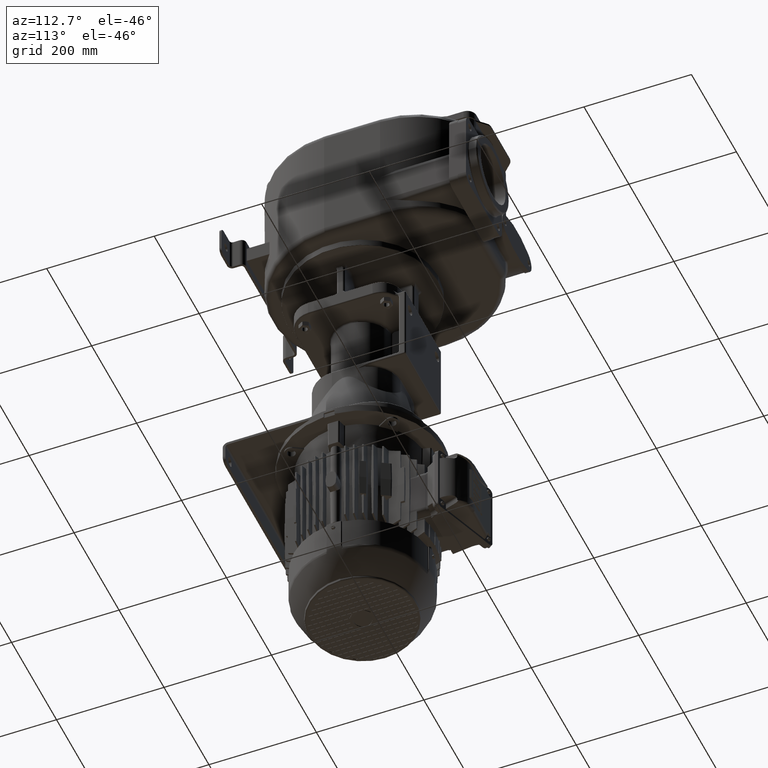
[diagram: clean part render]
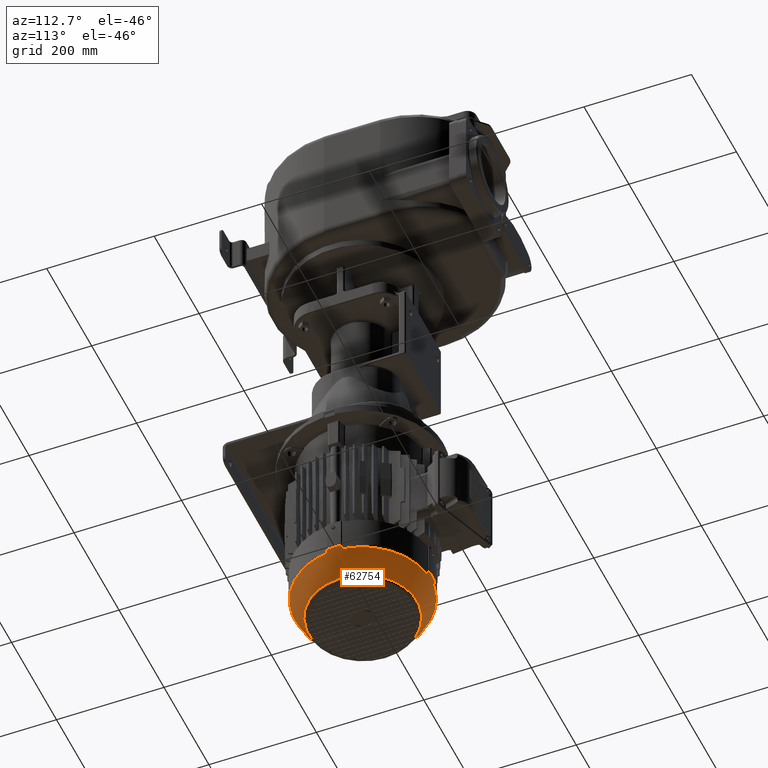
[diagram: same view with one face highlighted and labeled with its STEP entity id]
A machine part, auxiliary view. The second image highlights one B-rep face of the part: STEP entity #62754.
In plain terms, the highlighted spherical surface has radius 134.5 mm.
Its self-contained STEP definition (entity closure, byte-faithful):
#11132=CARTESIAN_POINT('',(-1.282834132325E2,1.568267666692E2,
-8.084111169065E2));
#11133=CARTESIAN_POINT('',(-1.282002467554E2,1.568032779781E2,
-8.086822287057E2));
#11134=CARTESIAN_POINT('',(-1.281156932223E2,1.567736879886E2,
-8.089527179535E2));
#11135=CARTESIAN_POINT('',(-1.280296044654E2,1.567363660330E2,
-8.092224832490E2));
#11147=CARTESIAN_POINT('',(-1.280296044654E2,1.567363660330E2,
-8.092224832490E2));
#11149=CARTESIAN_POINT('',(1.488929890107E1,4.430784874219E1,
-8.156978132399E2));
#11150=CARTESIAN_POINT('',(1.475633790256E1,4.414162035282E1,
-8.152821020653E2));
#11151=CARTESIAN_POINT('',(1.451012591653E1,4.383273899654E1,
-8.144949622778E2));
#11152=CARTESIAN_POINT('',(1.420208473912E1,4.343882422409E1,
-8.134575284162E2));
#11153=CARTESIAN_POINT('',(1.394909858010E1,4.310122451578E1,
-8.125400063495E2));
#11154=CARTESIAN_POINT('',(1.374609340761E1,4.281453450457E1,
-8.117377168706E2));
#11155=CARTESIAN_POINT('',(1.358396010419E1,4.256786875312E1,
-8.110284439032E2));
#11156=CARTESIAN_POINT('',(1.345259760771E1,4.234898089484E1,
-8.103827099015E2));
#11157=CARTESIAN_POINT('',(1.334597224308E1,4.215047869878E1,
-8.097824586456E2));
#11158=CARTESIAN_POINT('',(1.328886782367E1,4.202860126387E1,
-8.094048750780E2));
#11159=CARTESIAN_POINT('',(1.326363396699E1,4.197039553464E1,
-8.092224832490E2));
#11161=CARTESIAN_POINT('',(-2.557121654188E-14,1.7E2,-8.156978132152E2));
#11162=DIRECTION('',(0.E0,0.E0,-1.E0));
#11163=DIRECTION('',(9.930567840818E-1,-1.176359791440E-1,0.E0));
#11164=AXIS2_PLACEMENT_3D('',#11161,#11162,#11163);
#11166=CARTESIAN_POINT('',(1.280296044654E2,1.567363660330E2,
-8.092224832490E2));
#11167=CARTESIAN_POINT('',(1.279815723743E2,1.567155427411E2,
-8.093729952527E2));
#11168=CARTESIAN_POINT('',(1.278809265371E2,1.566690032651E2,
-8.096854269789E2));
#11169=CARTESIAN_POINT('',(1.277169968822E2,1.565836752938E2,
-8.101841309033E2));
#11170=CARTESIAN_POINT('',(1.275357833766E2,1.564793582791E2,
-8.107240291856E2));
#11171=CARTESIAN_POINT('',(1.273316054005E2,1.563511460900E2,
-8.113191411683E2));
#11172=CARTESIAN_POINT('',(1.270959097171E2,1.561915862627E2,
-8.119901599686E2));
#11173=CARTESIAN_POINT('',(1.268213800735E2,1.559936892965E2,
-8.127521171007E2));
#11174=CARTESIAN_POINT('',(1.265026428765E2,1.557525682495E2,
-8.136130094012E2));
#11175=CARTESIAN_POINT('',(1.261332163237E2,1.554627000672E2,
-8.145821741092E2));
#11176=CARTESIAN_POINT('',(1.258461145824E2,1.552338385376E2,
-8.153127707816E2));
#11177=CARTESIAN_POINT('',(1.256921512578E2,1.551107010989E2,
-8.156978132399E2));
#11179=CARTESIAN_POINT('',(-2.467888308207E-14,1.7E2,-8.084111169065E2));
#11180=DIRECTION('',(0.E0,0.E0,-1.E0));
#11181=DIRECTION('',(9.947688696105E-1,1.021513389720E-1,0.E0));
#11182=AXIS2_PLACEMENT_3D('',#11179,#11180,#11181);
#11184=CARTESIAN_POINT('',(1.256921512578E2,1.848892989011E2,
-8.156978132399E2));
#11185=CARTESIAN_POINT('',(1.258461144871E2,1.847661615394E2,
-8.153127710197E2));
#11186=CARTESIAN_POINT('',(1.261332160584E2,1.845373001448E2,
-8.145821747867E2));
#11187=CARTESIAN_POINT('',(1.265026423467E2,1.842474321616E2,
-8.136130108063E2));
#11188=CARTESIAN_POINT('',(1.268213794667E2,1.840063111547E2,
-8.127521187580E2));
#11189=CARTESIAN_POINT('',(1.270959089663E2,1.838084142647E2,
-8.119901620765E2));
#11190=CARTESIAN_POINT('',(1.273316047683E2,1.836488543206E2,
-8.113191429930E2));
#11191=CARTESIAN_POINT('',(1.275357829574E2,1.835206419696E2,
-8.107240304254E2));
#11192=CARTESIAN_POINT('',(1.277169966723E2,1.834163248184E2,
-8.101841315381E2));
#11193=CARTESIAN_POINT('',(1.278809264224E2,1.833309967877E2,
-8.096854273339E2));
#11194=CARTESIAN_POINT('',(1.279815723385E2,1.832844572746E2,
-8.093729953650E2));
#11195=CARTESIAN_POINT('',(1.280296044654E2,1.832636339670E2,
-8.092224832490E2));
#11197=CARTESIAN_POINT('',(-2.557121654188E-14,1.7E2,-8.156978132152E2));
#11198=DIRECTION('',(0.E0,0.E0,-1.E0));
#11199=DIRECTION('',(1.176359791440E-1,9.930567840818E-1,0.E0));
#11200=AXIS2_PLACEMENT_3D('',#11197,#11198,#11199);
#11202=CARTESIAN_POINT('',(1.326363396699E1,2.980296044654E2,
-8.092224832490E2));
#11203=CARTESIAN_POINT('',(1.328886781528E1,2.979713987549E2,
-8.094048750194E2));
#11204=CARTESIAN_POINT('',(1.334597221276E1,2.978495213672E2,
-8.097824584418E2));
#11205=CARTESIAN_POINT('',(1.345259753966E1,2.976510192294E2,
-8.103827095276E2));
#11206=CARTESIAN_POINT('',(1.358395991721E1,2.974321315488E2,
-8.110284430199E2));
#11207=CARTESIAN_POINT('',(1.374609314553E1,2.971854658761E2,
-8.117377157930E2));
#11208=CARTESIAN_POINT('',(1.394909840722E1,2.968987757176E2,
-8.125400057105E2));
#11209=CARTESIAN_POINT('',(1.420208465773E1,2.965611758792E2,
-8.134575281452E2));
#11210=CARTESIAN_POINT('',(1.451012598419E1,2.961672609184E2,
-8.144949625004E2));
#11211=CARTESIAN_POINT('',(1.475633793763E1,2.958583796007E2,
-8.152821021823E2));
#11212=CARTESIAN_POINT('',(1.488929890107E1,2.956921512578E2,
-8.156978132399E2));
#11214=CARTESIAN_POINT('',(-2.467888308207E-14,1.7E2,-8.084111169065E2));
#11215=DIRECTION('',(0.E0,0.E0,1.E0));
#11216=DIRECTION('',(1.021513389720E-1,9.947688696105E-1,0.E0));
#11217=AXIS2_PLACEMENT_3D('',#11214,#11215,#11216);
#11219=CARTESIAN_POINT('',(-1.488929890107E1,2.956921512578E2,
-8.156978132399E2));
#11220=CARTESIAN_POINT('',(-1.475633790239E1,2.958583796473E2,
-8.152821020651E2));
#11221=CARTESIAN_POINT('',(-1.451012591610E1,2.961672610037E2,
-8.144949622772E2));
#11222=CARTESIAN_POINT('',(-1.420208473875E1,2.965611757763E2,
-8.134575284153E2));
#11223=CARTESIAN_POINT('',(-1.394909857985E1,2.968987754846E2,
-8.125400063485E2));
#11224=CARTESIAN_POINT('',(-1.374609340735E1,2.971854654959E2,
-8.117377168694E2));
#11225=CARTESIAN_POINT('',(-1.358396010394E1,2.974321312473E2,
-8.110284439018E2));
#11226=CARTESIAN_POINT('',(-1.345259760751E1,2.976510191055E2,
-8.103827099003E2));
#11227=CARTESIAN_POINT('',(-1.334597224299E1,2.978495213014E2,
-8.097824586450E2));
#11228=CARTESIAN_POINT('',(-1.328886782364E1,2.979713987362E2,
-8.094048750778E2));
#11229=CARTESIAN_POINT('',(-1.326363396699E1,2.980296044654E2,
-8.092224832490E2));
#11231=CARTESIAN_POINT('',(-2.557121654188E-14,1.7E2,-8.156978132152E2));
#11232=DIRECTION('',(0.E0,0.E0,-1.E0));
#11233=DIRECTION('',(-9.930567840818E-1,1.176359791440E-1,0.E0));
#11234=AXIS2_PLACEMENT_3D('',#11231,#11232,#11233);
#11236=CARTESIAN_POINT('',(-1.280296044654E2,1.832636339670E2,
-8.092224832490E2));
#11237=CARTESIAN_POINT('',(-1.279815723743E2,1.832844572589E2,
-8.093729952527E2));
#11238=CARTESIAN_POINT('',(-1.278809265371E2,1.833309967349E2,
-8.096854269789E2));
#11239=CARTESIAN_POINT('',(-1.277169968822E2,1.834163247062E2,
-8.101841309032E2));
#11240=CARTESIAN_POINT('',(-1.275357833766E2,1.835206417209E2,
-8.107240291855E2));
#11241=CARTESIAN_POINT('',(-1.273316054005E2,1.836488539100E2,
-8.113191411682E2));
#11242=CARTESIAN_POINT('',(-1.270959097171E2,1.838084137373E2,
-8.119901599685E2));
#11243=CARTESIAN_POINT('',(-1.268213800735E2,1.840063107034E2,
-8.127521171006E2));
#11244=CARTESIAN_POINT('',(-1.265026428766E2,1.842474317505E2,
-8.136130094011E2));
#11245=CARTESIAN_POINT('',(-1.261332163238E2,1.845372999328E2,
-8.145821741092E2));
#11246=CARTESIAN_POINT('',(-1.258461145824E2,1.847661614624E2,
-8.153127707816E2));
#11247=CARTESIAN_POINT('',(-1.256921512578E2,1.848892989011E2,
-8.156978132399E2));
#11249=CARTESIAN_POINT('',(-2.467888308207E-14,1.7E2,-8.084111169065E2));
#11250=DIRECTION('',(0.E0,0.E0,-1.E0));
#11251=DIRECTION('',(-9.947688696105E-1,-1.021513389720E-1,0.E0));
#11252=AXIS2_PLACEMENT_3D('',#11249,#11250,#11251);
#11254=CARTESIAN_POINT('',(-1.256921512578E2,1.551107010989E2,
-8.156978132399E2));
#11255=CARTESIAN_POINT('',(-1.258461144872E2,1.552338384607E2,
-8.153127710195E2));
#11256=CARTESIAN_POINT('',(-1.261332160586E2,1.554626998555E2,
-8.145821747862E2));
#11257=CARTESIAN_POINT('',(-1.265026423470E2,1.557525678388E2,
-8.136130108055E2));
#11258=CARTESIAN_POINT('',(-1.268213794671E2,1.559936888456E2,
-8.127521187570E2));
#11259=CARTESIAN_POINT('',(-1.270959089667E2,1.561915857356E2,
-8.119901620753E2));
#11260=CARTESIAN_POINT('',(-1.273316047688E2,1.563511456796E2,
-8.113191429917E2));
#11261=CARTESIAN_POINT('',(-1.275357829578E2,1.564793580306E2,
-8.107240304243E2));
#11262=CARTESIAN_POINT('',(-1.277169966726E2,1.565836751817E2,
-8.101841315373E2));
#11263=CARTESIAN_POINT('',(-1.278809264226E2,1.566690032123E2,
-8.096854273334E2));
#11264=CARTESIAN_POINT('',(-1.279815723385E2,1.567155427254E2,
-8.093729953649E2));
#11265=CARTESIAN_POINT('',(-1.280296044654E2,1.567363660330E2,
-8.092224832490E2));
#11267=CARTESIAN_POINT('',(-2.557121654188E-14,1.7E2,-8.156978132152E2));
#11268=DIRECTION('',(0.E0,0.E0,-1.E0));
#11269=DIRECTION('',(-1.176359791440E-1,-9.930567840818E-1,0.E0));
#11270=AXIS2_PLACEMENT_3D('',#11267,#11268,#11269);
#11272=CARTESIAN_POINT('',(-1.326363396699E1,4.197039553464E1,
-8.092224832490E2));
#11273=CARTESIAN_POINT('',(-1.328886781529E1,4.202860124517E1,
-8.094048750195E2));
#11274=CARTESIAN_POINT('',(-1.334597221279E1,4.215047863284E1,
-8.097824584420E2));
#11275=CARTESIAN_POINT('',(-1.345259753973E1,4.234898077075E1,
-8.103827095280E2));
#11276=CARTESIAN_POINT('',(-1.358395991730E1,4.256786845140E1,
-8.110284430204E2));
#11277=CARTESIAN_POINT('',(-1.374609314562E1,4.281453412402E1,
-8.117377157934E2));
#11278=CARTESIAN_POINT('',(-1.394909840731E1,4.310122428256E1,
-8.125400057108E2));
#11279=CARTESIAN_POINT('',(-1.420208465787E1,4.343882412093E1,
-8.134575281455E2));
#11280=CARTESIAN_POINT('',(-1.451012598435E1,4.383273908167E1,
-8.144949625006E2));
#11281=CARTESIAN_POINT('',(-1.475633793769E1,4.414162039935E1,
-8.152821021824E2));
#11282=CARTESIAN_POINT('',(-1.488929890107E1,4.430784874219E1,
-8.156978132399E2));
#11284=CARTESIAN_POINT('',(-3.084290261170E-14,1.7E2,-8.587458184241E2));
#11285=DIRECTION('',(0.E0,0.E0,-1.E0));
#11286=DIRECTION('',(-1.E0,0.E0,0.E0));
#11287=AXIS2_PLACEMENT_3D('',#11284,#11285,#11286);
#11289=CARTESIAN_POINT('',(-3.084290261170E-14,1.7E2,-8.587458184241E2));
#11290=DIRECTION('',(0.E0,0.E0,-1.E0));
#11291=DIRECTION('',(1.E0,0.E0,0.E0));
#11292=AXIS2_PLACEMENT_3D('',#11289,#11290,#11291);
#11294=CARTESIAN_POINT('',(-2.467888308207E-14,1.7E2,-8.084111169065E2));
#11295=DIRECTION('',(0.E0,0.E0,-1.E0));
#11296=DIRECTION('',(1.021513389720E-1,-9.947688696105E-1,0.E0));
#11297=AXIS2_PLACEMENT_3D('',#11294,#11295,#11296);
#11326=CARTESIAN_POINT('',(1.317323333080E1,4.171658676751E1,
-8.084111169065E2));
#11632=CARTESIAN_POINT('',(1.317323333080E1,4.171658676751E1,
-8.084111169065E2));
#11633=CARTESIAN_POINT('',(1.319672202193E1,4.179975324463E1,
-8.086822287057E2));
#11634=CARTESIAN_POINT('',(1.322631201143E1,4.188430677767E1,
-8.089527179535E2));
#11635=CARTESIAN_POINT('',(1.326363396699E1,4.197039553464E1,
-8.092224832490E2));
#11647=CARTESIAN_POINT('',(1.326363396699E1,4.197039553464E1,
-8.092224832490E2));
#11673=CARTESIAN_POINT('',(1.256921512578E2,1.551107010989E2,
-8.156978132399E2));
#11691=CARTESIAN_POINT('',(1.488929890107E1,4.430784874219E1,
-8.156978132399E2));
#11849=CARTESIAN_POINT('',(1.282834132325E2,1.831732333308E2,
-8.084111169065E2));
#11850=CARTESIAN_POINT('',(1.282002467554E2,1.831967220219E2,
-8.086822287057E2));
#11851=CARTESIAN_POINT('',(1.281156932223E2,1.832263120114E2,
-8.089527179535E2));
#11852=CARTESIAN_POINT('',(1.280296044654E2,1.832636339670E2,
-8.092224832490E2));
#11908=CARTESIAN_POINT('',(1.256921512578E2,1.848892989011E2,
-8.156978132399E2));
#11937=CARTESIAN_POINT('',(1.317323333080E1,2.982834132325E2,
-8.084111169065E2));
#12108=CARTESIAN_POINT('',(-1.317323333080E1,2.982834132325E2,
-8.084111169065E2));
#12109=CARTESIAN_POINT('',(-1.319672202193E1,2.982002467554E2,
-8.086822287057E2));
#12110=CARTESIAN_POINT('',(-1.322631201143E1,2.981156932223E2,
-8.089527179535E2));
#12111=CARTESIAN_POINT('',(-1.326363396699E1,2.980296044654E2,
-8.092224832490E2));
#12117=CARTESIAN_POINT('',(-1.317323333080E1,2.982834132325E2,
-8.084111169065E2));
#12123=CARTESIAN_POINT('',(-1.326363396699E1,2.980296044654E2,
-8.092224832490E2));
#12137=CARTESIAN_POINT('',(-1.488929890107E1,2.956921512578E2,
-8.156978132399E2));
#12159=CARTESIAN_POINT('',(-1.256921512578E2,1.848892989011E2,
-8.156978132399E2));
#12271=CARTESIAN_POINT('',(-1.282834132325E2,1.568267666692E2,
-8.084111169065E2));
#12289=CARTESIAN_POINT('',(-1.282834132325E2,1.831732333308E2,
-8.084111169065E2));
#12299=CARTESIAN_POINT('',(-1.280296044654E2,1.832636339670E2,
-8.092224832490E2));
#12300=CARTESIAN_POINT('',(-1.281156932223E2,1.832263120114E2,
-8.089527179535E2));
#12301=CARTESIAN_POINT('',(-1.282002467554E2,1.831967220219E2,
-8.086822287057E2));
#12302=CARTESIAN_POINT('',(-1.282834132325E2,1.831732333308E2,
-8.084111169065E2));
#12308=CARTESIAN_POINT('',(-1.280296044654E2,1.832636339670E2,
-8.092224832490E2));
#12805=CARTESIAN_POINT('',(1.326363396699E1,2.980296044654E2,
-8.092224832490E2));
#12806=CARTESIAN_POINT('',(1.322631201143E1,2.981156932223E2,
-8.089527179535E2));
#12807=CARTESIAN_POINT('',(1.319672202193E1,2.982002467554E2,
-8.086822287057E2));
#12808=CARTESIAN_POINT('',(1.317323333080E1,2.982834132325E2,
-8.084111169065E2));
#12814=CARTESIAN_POINT('',(1.326363396699E1,2.980296044654E2,
-8.092224832490E2));
#12821=CARTESIAN_POINT('',(1.488929890107E1,2.956921512578E2,
-8.156978132399E2));
#12860=CARTESIAN_POINT('',(1.282834132325E2,1.831732333308E2,
-8.084111169065E2));
#12878=CARTESIAN_POINT('',(1.282834132325E2,1.568267666692E2,
-8.084111169065E2));
#13348=CARTESIAN_POINT('',(1.280296044654E2,1.567363660330E2,
-8.092224832490E2));
#13349=CARTESIAN_POINT('',(1.281156932223E2,1.567736879886E2,
-8.089527179535E2));
#13350=CARTESIAN_POINT('',(1.282002467554E2,1.568032779781E2,
-8.086822287057E2));
#13351=CARTESIAN_POINT('',(1.282834132325E2,1.568267666692E2,
-8.084111169065E2));
#13719=CARTESIAN_POINT('',(-1.326363396699E1,4.197039553464E1,
-8.092224832490E2));
#13720=CARTESIAN_POINT('',(-1.322631201143E1,4.188430677767E1,
-8.089527179535E2));
#13721=CARTESIAN_POINT('',(-1.319672202193E1,4.179975324463E1,
-8.086822287057E2));
#13722=CARTESIAN_POINT('',(-1.317323333080E1,4.171658676751E1,
-8.084111169065E2));
#13754=CARTESIAN_POINT('',(-1.488929890107E1,4.430784874219E1,
-8.156978132399E2));
#13772=CARTESIAN_POINT('',(-1.256921512578E2,1.551107010989E2,
-8.156978132399E2));
#48033=VERTEX_POINT('',#13719);
#48034=VERTEX_POINT('',#13722);
#49311=VERTEX_POINT('',#12123);
#49316=VERTEX_POINT('',#12137);
#49648=VERTEX_POINT('',#12117);
#49972=VERTEX_POINT('',#12821);
#49981=VERTEX_POINT('',#11937);
#49986=VERTEX_POINT('',#12814);
#50520=VERTEX_POINT('',#13754);
#50522=VERTEX_POINT('',#12289);
#50524=VERTEX_POINT('',#12271);
#50526=VERTEX_POINT('',#11326);
#50527=VERTEX_POINT('',#12860);
#50533=VERTEX_POINT('',#11691);
#50542=VERTEX_POINT('',#12878);
#50543=VERTEX_POINT('',#11908);
#50545=VERTEX_POINT('',#12308);
#50546=VERTEX_POINT('',#11673);
#50551=VERTEX_POINT('',#12159);
#50556=VERTEX_POINT('',#13772);
#50602=VERTEX_POINT('',#11647);
#50621=VERTEX_POINT('',#11147);
#50701=CARTESIAN_POINT('',(1.012418181818E2,1.7E2,-8.587458184241E2));
#50703=VERTEX_POINT('',#50701);
#50714=VERTEX_POINT('',#11166);
#50715=VERTEX_POINT('',#11195);
#50741=CARTESIAN_POINT('',(-1.012418181818E2,1.7E2,-8.587458184241E2));
#50742=VERTEX_POINT('',#50741);
#62695=CARTESIAN_POINT('',(-1.999953767311E-14,1.7E2,-7.702001E2));
#62696=DIRECTION('',(1.E0,0.E0,0.E0));
#62697=DIRECTION('',(0.E0,1.E0,0.E0));
#62698=AXIS2_PLACEMENT_3D('',#62695,#62696,#62697);
#62699=SPHERICAL_SURFACE('',#62698,1.345E2);
#62701=ORIENTED_EDGE('',*,*,#62700,.F.);
#62703=ORIENTED_EDGE('',*,*,#62702,.T.);
#62705=ORIENTED_EDGE('',*,*,#62704,.F.);
#62707=ORIENTED_EDGE('',*,*,#62706,.F.);
#62709=ORIENTED_EDGE('',*,*,#62708,.F.);
#62711=ORIENTED_EDGE('',*,*,#62710,.T.);
#62713=ORIENTED_EDGE('',*,*,#62712,.F.);
#62715=ORIENTED_EDGE('',*,*,#62714,.T.);
#62717=ORIENTED_EDGE('',*,*,#62716,.F.);
#62719=ORIENTED_EDGE('',*,*,#62718,.F.);
#62721=ORIENTED_EDGE('',*,*,#62720,.F.);
#62723=ORIENTED_EDGE('',*,*,#62722,.T.);
#62725=ORIENTED_EDGE('',*,*,#62724,.T.);
#62727=ORIENTED_EDGE('',*,*,#62726,.T.);
#62729=ORIENTED_EDGE('',*,*,#62728,.F.);
#62731=ORIENTED_EDGE('',*,*,#62730,.F.);
#62733=ORIENTED_EDGE('',*,*,#62732,.F.);
#62735=ORIENTED_EDGE('',*,*,#62734,.T.);
#62737=ORIENTED_EDGE('',*,*,#62736,.F.);
#62738=ORIENTED_EDGE('',*,*,#62653,.T.);
#62739=ORIENTED_EDGE('',*,*,#62687,.F.);
#62741=ORIENTED_EDGE('',*,*,#62740,.F.);
#62743=ORIENTED_EDGE('',*,*,#62742,.F.);
#62745=ORIENTED_EDGE('',*,*,#62744,.T.);
#62746=EDGE_LOOP('',(#62701,#62703,#62705,#62707,#62709,#62711,#62713,#62715,
#62717,#62719,#62721,#62723,#62725,#62727,#62729,#62731,#62733,#62735,#62737,
#62738,#62739,#62741,#62743,#62745));
#62747=FACE_OUTER_BOUND('',#62746,.F.);
#62749=ORIENTED_EDGE('',*,*,#62748,.T.);
#62751=ORIENTED_EDGE('',*,*,#62750,.T.);
#62752=EDGE_LOOP('',(#62749,#62751));
#62753=FACE_BOUND('',#62752,.F.);
#62754=ADVANCED_FACE('',(#62747,#62753),#62699,.T.);
#11136=B_SPLINE_CURVE_WITH_KNOTS('',3,(#11132,#11133,#11134,#11135),
.UNSPECIFIED.,.F.,.F.,(4,4),(0.E0,1.E0),.UNSPECIFIED.);
#11160=B_SPLINE_CURVE_WITH_KNOTS('',3,(#11149,#11150,#11151,#11152,#11153,
#11154,#11155,#11156,#11157,#11158,#11159),.UNSPECIFIED.,.F.,.F.,(4,1,1,1,1,1,1,
1,4),(0.E0,1.25E-1,2.5E-1,3.75E-1,5.E-1,6.25E-1,7.5E-1,8.75E-1,1.E0),
.UNSPECIFIED.);
#11165=CIRCLE('',#11164,1.265709606987E2);
#11178=B_SPLINE_CURVE_WITH_KNOTS('',3,(#11166,#11167,#11168,#11169,#11170,
#11171,#11172,#11173,#11174,#11175,#11176,#11177),.UNSPECIFIED.,.F.,.F.,(4,1,1,
1,1,1,1,1,1,4),(0.E0,1.111111111111E-1,2.222222222222E-1,3.333333333333E-1,
4.444444444444E-1,5.555555555556E-1,6.666666666667E-1,7.777777777778E-1,
8.888888888889E-1,1.E0),.UNSPECIFIED.);
#11183=CIRCLE('',#11182,1.289580093944E2);
#11196=B_SPLINE_CURVE_WITH_KNOTS('',3,(#11184,#11185,#11186,#11187,#11188,
#11189,#11190,#11191,#11192,#11193,#11194,#11195),.UNSPECIFIED.,.F.,.F.,(4,1,1,
1,1,1,1,1,1,4),(0.E0,1.111111111111E-1,2.222222222222E-1,3.333333333333E-1,
4.444444444444E-1,5.555555555556E-1,6.666666666667E-1,7.777777777778E-1,
8.888888888889E-1,1.E0),.UNSPECIFIED.);
#11201=CIRCLE('',#11200,1.265709606987E2);
#11213=B_SPLINE_CURVE_WITH_KNOTS('',3,(#11202,#11203,#11204,#11205,#11206,
#11207,#11208,#11209,#11210,#11211,#11212),.UNSPECIFIED.,.F.,.F.,(4,1,1,1,1,1,1,
1,4),(0.E0,1.25E-1,2.5E-1,3.75E-1,5.E-1,6.25E-1,7.5E-1,8.75E-1,1.E0),
.UNSPECIFIED.);
#11218=CIRCLE('',#11217,1.289580093944E2);
#11230=B_SPLINE_CURVE_WITH_KNOTS('',3,(#11219,#11220,#11221,#11222,#11223,
#11224,#11225,#11226,#11227,#11228,#11229),.UNSPECIFIED.,.F.,.F.,(4,1,1,1,1,1,1,
1,4),(0.E0,1.25E-1,2.5E-1,3.75E-1,5.E-1,6.25E-1,7.5E-1,8.75E-1,1.E0),
.UNSPECIFIED.);
#11235=CIRCLE('',#11234,1.265709606987E2);
#11248=B_SPLINE_CURVE_WITH_KNOTS('',3,(#11236,#11237,#11238,#11239,#11240,
#11241,#11242,#11243,#11244,#11245,#11246,#11247),.UNSPECIFIED.,.F.,.F.,(4,1,1,
1,1,1,1,1,1,4),(0.E0,1.111111111111E-1,2.222222222222E-1,3.333333333333E-1,
4.444444444444E-1,5.555555555556E-1,6.666666666667E-1,7.777777777778E-1,
8.888888888889E-1,1.E0),.UNSPECIFIED.);
#11253=CIRCLE('',#11252,1.289580093944E2);
#11266=B_SPLINE_CURVE_WITH_KNOTS('',3,(#11254,#11255,#11256,#11257,#11258,
#11259,#11260,#11261,#11262,#11263,#11264,#11265),.UNSPECIFIED.,.F.,.F.,(4,1,1,
1,1,1,1,1,1,4),(0.E0,1.111111111111E-1,2.222222222222E-1,3.333333333333E-1,
4.444444444444E-1,5.555555555556E-1,6.666666666667E-1,7.777777777778E-1,
8.888888888889E-1,1.E0),.UNSPECIFIED.);
#11271=CIRCLE('',#11270,1.265709606987E2);
#11283=B_SPLINE_CURVE_WITH_KNOTS('',3,(#11272,#11273,#11274,#11275,#11276,
#11277,#11278,#11279,#11280,#11281,#11282),.UNSPECIFIED.,.F.,.F.,(4,1,1,1,1,1,1,
1,4),(0.E0,1.25E-1,2.5E-1,3.75E-1,5.E-1,6.25E-1,7.5E-1,8.75E-1,1.E0),
.UNSPECIFIED.);
#11288=CIRCLE('',#11287,1.012418181818E2);
#11293=CIRCLE('',#11292,1.012418181818E2);
#11298=CIRCLE('',#11297,1.289580093944E2);
#11636=B_SPLINE_CURVE_WITH_KNOTS('',3,(#11632,#11633,#11634,#11635),
.UNSPECIFIED.,.F.,.F.,(4,4),(0.E0,1.E0),.UNSPECIFIED.);
#11853=B_SPLINE_CURVE_WITH_KNOTS('',3,(#11849,#11850,#11851,#11852),
.UNSPECIFIED.,.F.,.F.,(4,4),(0.E0,1.E0),.UNSPECIFIED.);
#12112=B_SPLINE_CURVE_WITH_KNOTS('',3,(#12108,#12109,#12110,#12111),
.UNSPECIFIED.,.F.,.F.,(4,4),(0.E0,1.E0),.UNSPECIFIED.);
#12303=B_SPLINE_CURVE_WITH_KNOTS('',3,(#12299,#12300,#12301,#12302),
.UNSPECIFIED.,.F.,.F.,(4,4),(0.E0,1.E0),.UNSPECIFIED.);
#12809=B_SPLINE_CURVE_WITH_KNOTS('',3,(#12805,#12806,#12807,#12808),
.UNSPECIFIED.,.F.,.F.,(4,4),(0.E0,1.E0),.UNSPECIFIED.);
#13352=B_SPLINE_CURVE_WITH_KNOTS('',3,(#13348,#13349,#13350,#13351),
.UNSPECIFIED.,.F.,.F.,(4,4),(0.E0,1.E0),.UNSPECIFIED.);
#13723=B_SPLINE_CURVE_WITH_KNOTS('',3,(#13719,#13720,#13721,#13722),
.UNSPECIFIED.,.F.,.F.,(4,4),(0.E0,1.E0),.UNSPECIFIED.);
#62653=EDGE_CURVE('',#50524,#50621,#11136,.T.);
#62687=EDGE_CURVE('',#50556,#50621,#11266,.T.);
#62700=EDGE_CURVE('',#50526,#48034,#11298,.T.);
#62702=EDGE_CURVE('',#50526,#50602,#11636,.T.);
#62704=EDGE_CURVE('',#50533,#50602,#11160,.T.);
#62706=EDGE_CURVE('',#50546,#50533,#11165,.T.);
#62708=EDGE_CURVE('',#50714,#50546,#11178,.T.);
#62710=EDGE_CURVE('',#50714,#50542,#13352,.T.);
#62712=EDGE_CURVE('',#50527,#50542,#11183,.T.);
#62714=EDGE_CURVE('',#50527,#50715,#11853,.T.);
#62716=EDGE_CURVE('',#50543,#50715,#11196,.T.);
#62718=EDGE_CURVE('',#49972,#50543,#11201,.T.);
#62720=EDGE_CURVE('',#49986,#49972,#11213,.T.);
#62722=EDGE_CURVE('',#49986,#49981,#12809,.T.);
#62724=EDGE_CURVE('',#49981,#49648,#11218,.T.);
#62726=EDGE_CURVE('',#49648,#49311,#12112,.T.);
#62728=EDGE_CURVE('',#49316,#49311,#11230,.T.);
#62730=EDGE_CURVE('',#50551,#49316,#11235,.T.);
#62732=EDGE_CURVE('',#50545,#50551,#11248,.T.);
#62734=EDGE_CURVE('',#50545,#50522,#12303,.T.);
#62736=EDGE_CURVE('',#50524,#50522,#11253,.T.);
#62740=EDGE_CURVE('',#50520,#50556,#11271,.T.);
#62742=EDGE_CURVE('',#48033,#50520,#11283,.T.);
#62744=EDGE_CURVE('',#48033,#48034,#13723,.T.);
#62748=EDGE_CURVE('',#50742,#50703,#11288,.T.);
#62750=EDGE_CURVE('',#50703,#50742,#11293,.T.);